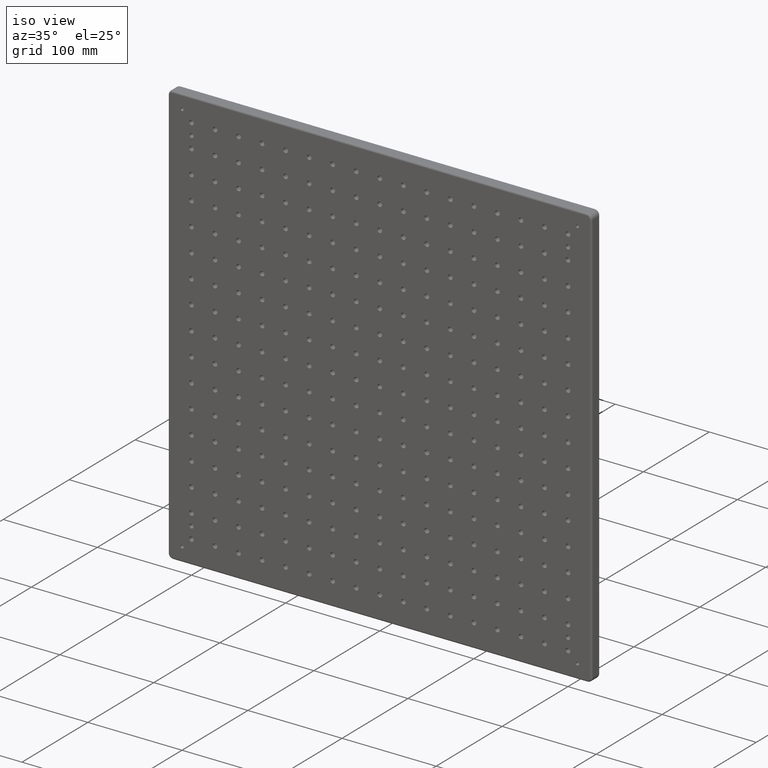
[diagram: clean part render]
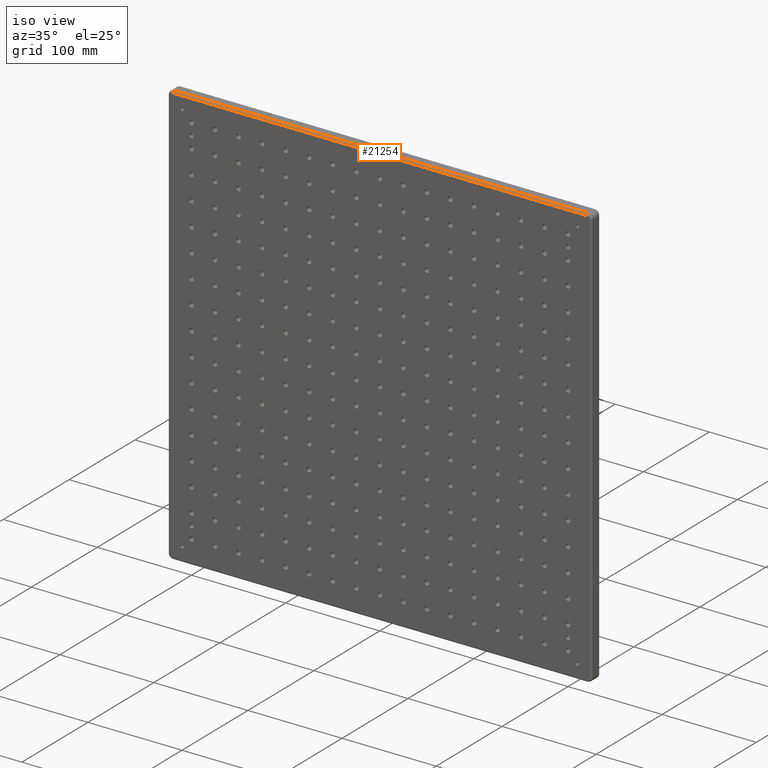
[diagram: same view with one face highlighted and labeled with its STEP entity id]
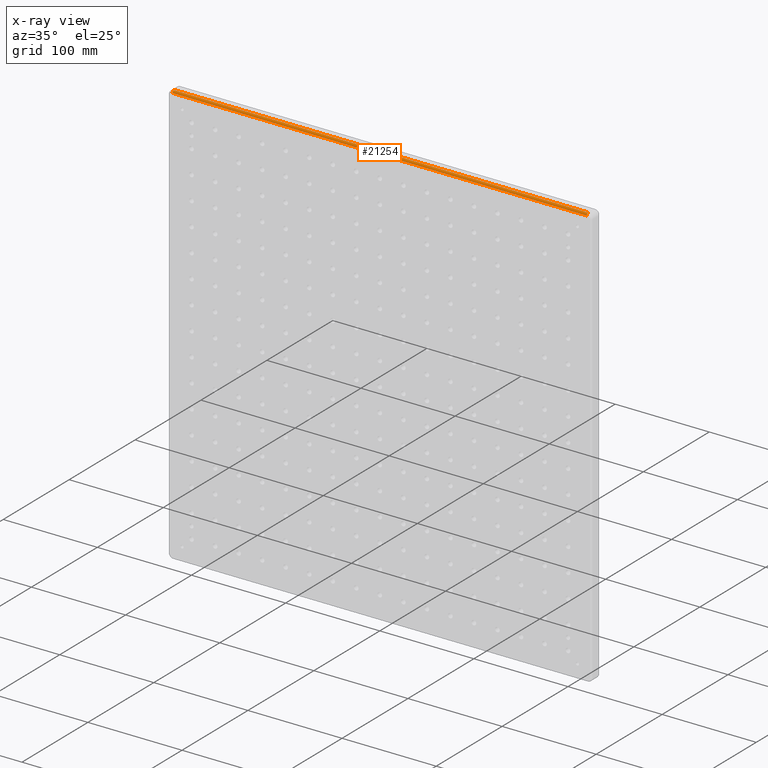
[diagram: x-ray of the same camera — body ghosted, the highlighted face saturated]
A machine part, iso view. The second image highlights one B-rep face of the part: STEP entity #21254.
The next image is the same camera in x-ray: the body ghosted, the highlighted face saturated — about 0% of this face is hidden behind the body in this view.
In plain terms, the highlighted cylindrical surface (edge-blend (fillet) strip) has radius 2 mm, axis along (1, -0, 0).
Its self-contained STEP definition (entity closure, byte-faithful):
#601 = EDGE_CURVE ( 'NONE', #6968, #8339, #21188, .T. ) ;
#1048 = CIRCLE ( 'NONE', #14432, 2.000000000000001800 ) ;
#1400 = ORIENTED_EDGE ( 'NONE', *, *, #21033, .T. ) ;
#2000 = DIRECTION ( 'NONE',  ( 0.0000000000000000000, 0.0000000000000000000, 1.000000000000000000 ) ) ;
#2845 = DIRECTION ( 'NONE',  ( 0.0000000000000000000, 0.0000000000000000000, -1.000000000000000000 ) ) ;
#3643 = DIRECTION ( 'NONE',  ( -1.000000000000000000, 0.0000000000000000000, 0.0000000000000000000 ) ) ;
#4953 = VERTEX_POINT ( 'NONE', #14487 ) ;
#5749 = ORIENTED_EDGE ( 'NONE', *, *, #601, .F. ) ;
#6615 = DIRECTION ( 'NONE',  ( -1.000000000000000000, 0.0000000000000000000, -0.0000000000000000000 ) ) ;
#6968 = VERTEX_POINT ( 'NONE', #9709 ) ;
#7256 = LINE ( 'NONE', #16865, #14246 ) ;
#7703 = CYLINDRICAL_SURFACE ( 'NONE', #21720, 2.000000000000001800 ) ;
#8339 = VERTEX_POINT ( 'NONE', #18327 ) ;
#8963 = VECTOR ( 'NONE', #10410, 1000.000000000000000 ) ;
#9256 = CARTESIAN_POINT ( 'NONE',  ( -220.0000000000000300, 0.0000000000000000000, 222.9999999999999700 ) ) ;
#9271 = CIRCLE ( 'NONE', #16610, 2.000000000000001800 ) ;
#9529 = DIRECTION ( 'NONE',  ( 1.000000000000000000, -0.0000000000000000000, 0.0000000000000000000 ) ) ;
#9709 = CARTESIAN_POINT ( 'NONE',  ( -220.0000000000000300, 2.000000000000003600, 224.9999999999999700 ) ) ;
#10410 = DIRECTION ( 'NONE',  ( 1.000000000000000000, -0.0000000000000000000, 0.0000000000000000000 ) ) ;
#10440 = EDGE_CURVE ( 'NONE', #12423, #6968, #9271, .T. ) ;
#12277 = EDGE_LOOP ( 'NONE', ( #1400, #5749, #12553, #23040 ) ) ;
#12423 = VERTEX_POINT ( 'NONE', #9256 ) ;
#12553 = ORIENTED_EDGE ( 'NONE', *, *, #10440, .F. ) ;
#14246 = VECTOR ( 'NONE', #6615, 1000.000000000000000 ) ;
#14432 = AXIS2_PLACEMENT_3D ( 'NONE', #21496, #3643, #2000 ) ;
#14487 = CARTESIAN_POINT ( 'NONE',  ( 220.0000000000000300, 0.0000000000000000000, 222.9999999999999700 ) ) ;
#14774 = DIRECTION ( 'NONE',  ( 0.0000000000000000000, 0.0000000000000000000, 1.000000000000000000 ) ) ;
#15417 = EDGE_CURVE ( 'NONE', #4953, #12423, #7256, .T. ) ;
#16445 = CARTESIAN_POINT ( 'NONE',  ( -220.0000000000000300, 2.000000000000000000, 222.9999999999999700 ) ) ;
#16595 = CARTESIAN_POINT ( 'NONE',  ( -220.0000000000000300, 2.000000000000000000, 222.9999999999999700 ) ) ;
#16610 = AXIS2_PLACEMENT_3D ( 'NONE', #16445, #21811, #14774 ) ;
#16865 = CARTESIAN_POINT ( 'NONE',  ( -220.0000000000000300, 0.0000000000000000000, 222.9999999999999400 ) ) ;
#16872 = FACE_OUTER_BOUND ( 'NONE', #12277, .T. ) ;
#18327 = CARTESIAN_POINT ( 'NONE',  ( 220.0000000000000300, 2.000000000000003600, 224.9999999999999100 ) ) ;
#21033 = EDGE_CURVE ( 'NONE', #4953, #8339, #1048, .T. ) ;
#21188 = LINE ( 'NONE', #22691, #8963 ) ;
#21254 = ADVANCED_FACE ( 'NONE', ( #16872 ), #7703, .T. ) ;
#21496 = CARTESIAN_POINT ( 'NONE',  ( 220.0000000000000300, 2.000000000000000000, 222.9999999999999400 ) ) ;
#21720 = AXIS2_PLACEMENT_3D ( 'NONE', #16595, #9529, #2845 ) ;
#21811 = DIRECTION ( 'NONE',  ( -1.000000000000000000, 0.0000000000000000000, 0.0000000000000000000 ) ) ;
#22691 = CARTESIAN_POINT ( 'NONE',  ( -220.0000000000000300, 2.000000000000000000, 224.9999999999999700 ) ) ;
#23040 = ORIENTED_EDGE ( 'NONE', *, *, #15417, .F. ) ;